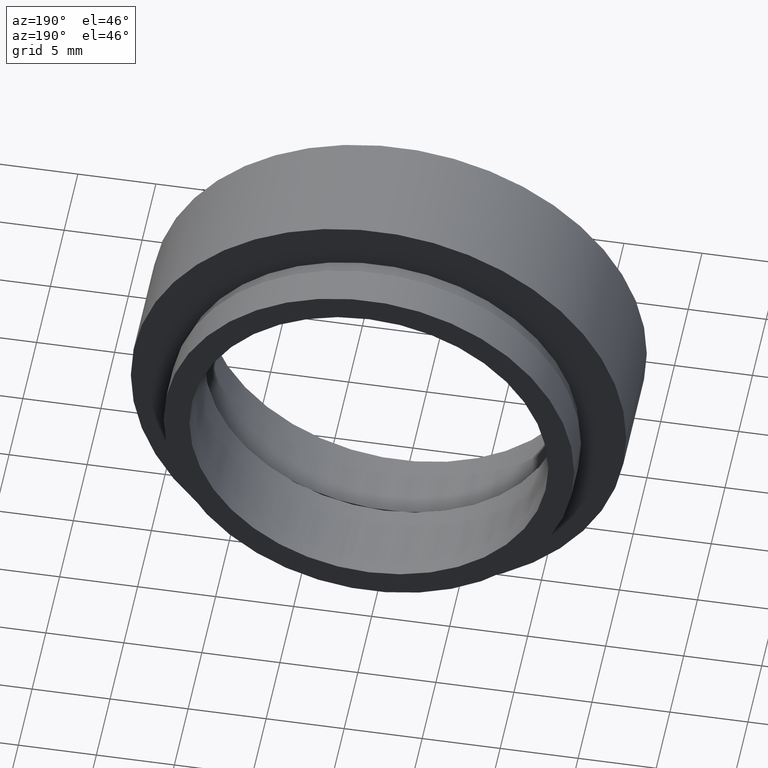
[diagram: clean part render]
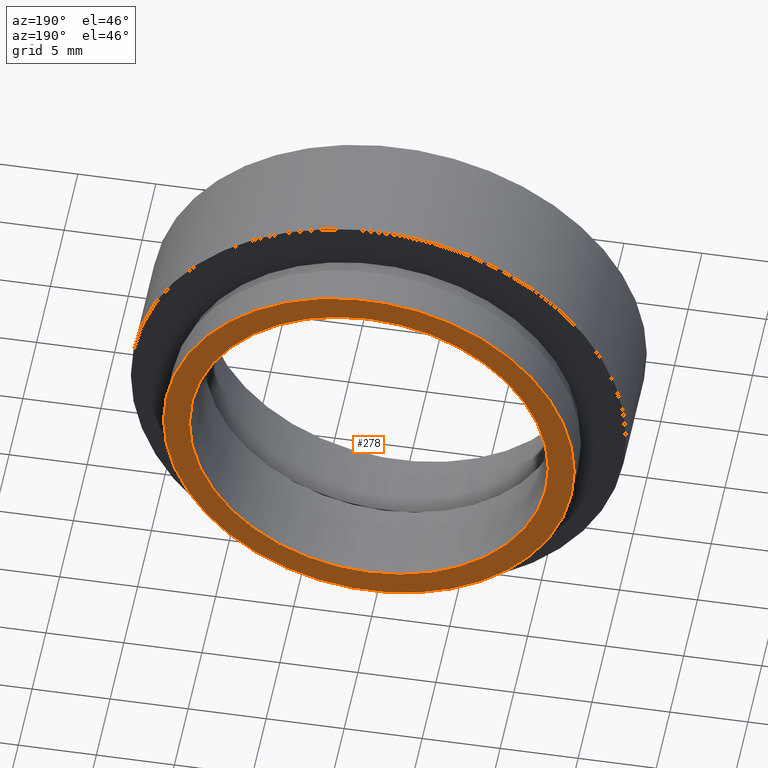
[diagram: same view with one face highlighted and labeled with its STEP entity id]
A machine part, auxiliary view. The second image highlights one B-rep face of the part: STEP entity #278.
In plain terms, the highlighted planar face has unit normal (0, -1, 0).
Its self-contained STEP definition (entity closure, byte-faithful):
#12 = FACE_OUTER_BOUND ( 'NONE', #59, .T. ) ;
#35 = FACE_BOUND ( 'NONE', #490, .T. ) ;
#59 = EDGE_LOOP ( 'NONE', ( #443, #154 ) ) ;
#70 = EDGE_CURVE ( 'NONE', #142, #588, #145, .T. ) ;
#83 = DIRECTION ( 'NONE',  ( 1.000000000000000000, 1.224646799147351000E-016, 0.0000000000000000000 ) ) ;
#118 = CARTESIAN_POINT ( 'NONE',  ( 7.208293393765502500E-016, 10.99999999999999600, 0.0000000000000000000 ) ) ;
#123 = PLANE ( 'NONE',  #609 ) ;
#128 = CARTESIAN_POINT ( 'NONE',  ( 13.16000000000000200, 10.99999999999999800, 1.611635187677917100E-015 ) ) ;
#138 = AXIS2_PLACEMENT_3D ( 'NONE', #236, #571, #383 ) ;
#142 = VERTEX_POINT ( 'NONE', #318 ) ;
#145 = CIRCLE ( 'NONE', #243, 11.50000000000000200 ) ;
#154 = ORIENTED_EDGE ( 'NONE', *, *, #555, .T. ) ;
#168 = DIRECTION ( 'NONE',  ( -1.000000000000000000, -1.508455196501571200E-016, 0.0000000000000000000 ) ) ;
#185 = DIRECTION ( 'NONE',  ( -1.224646799147351000E-016, 1.000000000000000000, -0.0000000000000000000 ) ) ;
#217 = CARTESIAN_POINT ( 'NONE',  ( 11.50000000000000200, 10.99999999999999800, 0.0000000000000000000 ) ) ;
#220 = DIRECTION ( 'NONE',  ( -1.224646799147351000E-016, 1.000000000000000000, -0.0000000000000000000 ) ) ;
#236 = CARTESIAN_POINT ( 'NONE',  ( 7.208293393765502500E-016, 10.99999999999999600, 0.0000000000000000000 ) ) ;
#243 = AXIS2_PLACEMENT_3D ( 'NONE', #118, #455, #456 ) ;
#256 = CIRCLE ( 'NONE', #480, 11.50000000000000200 ) ;
#261 = ORIENTED_EDGE ( 'NONE', *, *, #321, .F. ) ;
#278 = ADVANCED_FACE ( 'NONE', ( #35, #12 ), #123, .F. ) ;
#296 = VERTEX_POINT ( 'NONE', #596 ) ;
#318 = CARTESIAN_POINT ( 'NONE',  ( 11.50000000000000200, 10.99999999999999800, 1.408343819019456600E-015 ) ) ;
#320 = VERTEX_POINT ( 'NONE', #128 ) ;
#321 = EDGE_CURVE ( 'NONE', #588, #142, #256, .T. ) ;
#355 = EDGE_CURVE ( 'NONE', #296, #320, #402, .T. ) ;
#383 = DIRECTION ( 'NONE',  ( -1.000000000000000000, -1.318178933113075200E-016, 0.0000000000000000000 ) ) ;
#402 = CIRCLE ( 'NONE', #483, 13.16000000000000000 ) ;
#408 = DIRECTION ( 'NONE',  ( 1.224646799147351000E-016, -1.000000000000000000, 0.0000000000000000000 ) ) ;
#413 = CIRCLE ( 'NONE', #138, 13.16000000000000000 ) ;
#443 = ORIENTED_EDGE ( 'NONE', *, *, #355, .T. ) ;
#455 = DIRECTION ( 'NONE',  ( -1.224646799147351000E-016, 1.000000000000000000, -0.0000000000000000000 ) ) ;
#456 = DIRECTION ( 'NONE',  ( -1.000000000000000000, -1.508455196501571200E-016, 0.0000000000000000000 ) ) ;
#472 = CARTESIAN_POINT ( 'NONE',  ( -11.50000000000000200, 10.99999999999999500, 0.0000000000000000000 ) ) ;
#480 = AXIS2_PLACEMENT_3D ( 'NONE', #545, #220, #168 ) ;
#483 = AXIS2_PLACEMENT_3D ( 'NONE', #518, #185, #509 ) ;
#490 = EDGE_LOOP ( 'NONE', ( #261, #550 ) ) ;
#509 = DIRECTION ( 'NONE',  ( -1.000000000000000000, -1.318178933113075200E-016, 0.0000000000000000000 ) ) ;
#518 = CARTESIAN_POINT ( 'NONE',  ( 7.208293393765502500E-016, 10.99999999999999600, 0.0000000000000000000 ) ) ;
#545 = CARTESIAN_POINT ( 'NONE',  ( 7.208293393765502500E-016, 10.99999999999999600, 0.0000000000000000000 ) ) ;
#550 = ORIENTED_EDGE ( 'NONE', *, *, #70, .F. ) ;
#555 = EDGE_CURVE ( 'NONE', #320, #296, #413, .T. ) ;
#571 = DIRECTION ( 'NONE',  ( -1.224646799147351000E-016, 1.000000000000000000, -0.0000000000000000000 ) ) ;
#588 = VERTEX_POINT ( 'NONE', #472 ) ;
#596 = CARTESIAN_POINT ( 'NONE',  ( -13.16000000000000000, 10.99999999999999500, 0.0000000000000000000 ) ) ;
#609 = AXIS2_PLACEMENT_3D ( 'NONE', #217, #408, #83 ) ;